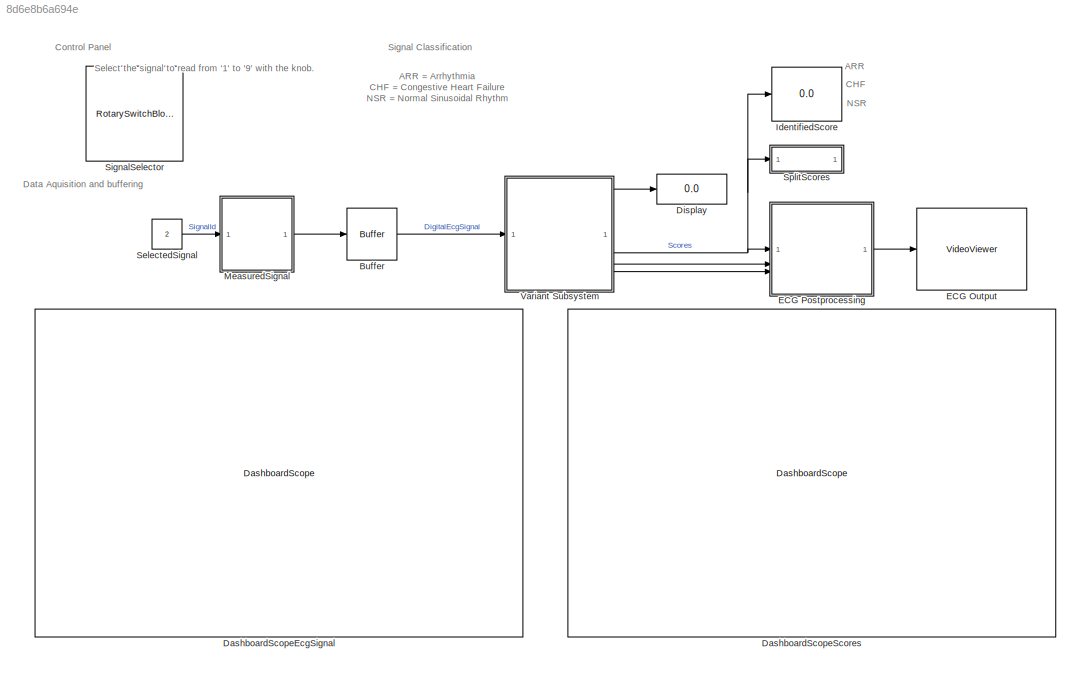
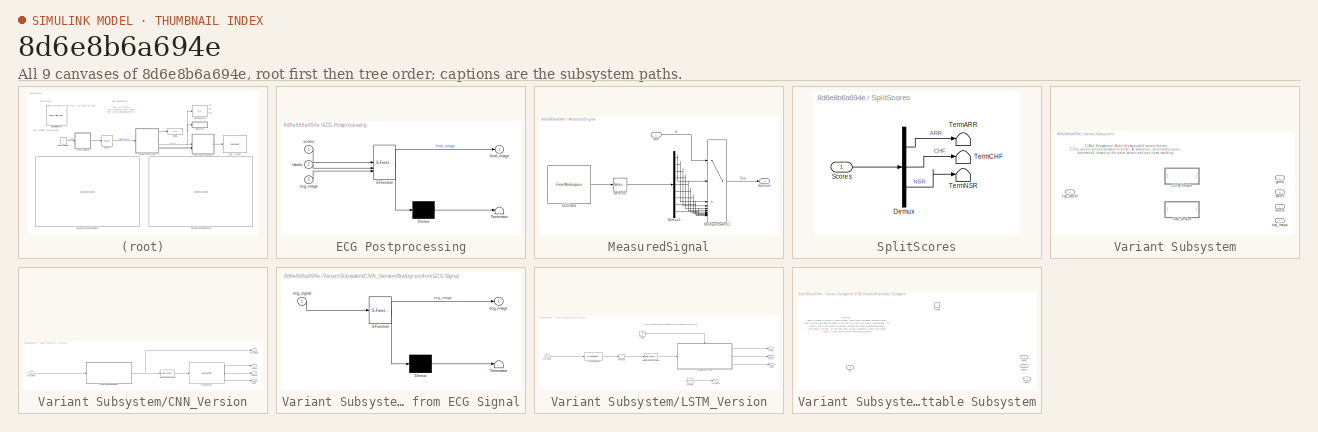
[diagram: thumbnail index - all 9 canvases of the model, root first then tree order]
MODEL slx_8d6e8b6a694e
KIND model
CONFIG AbsTol = auto
CONFIG EnableMultiTasking = off
CONFIG FixedStep = 1/128
CONFIG MaxStep = auto
CONFIG MinStep = auto
CONFIG RelTol = 1e-3
CONFIG SampleTimeConstraint = Unconstrained
CONFIG SolverName = FixedStepDiscrete
CONFIG StartTime = 0
CONFIG StopTime = 511
BLOCK [Buffer] Buffer
  N = 1024
  OutputFrames = off
  V = 512
BLOCK [DashboardScope] DashboardScopeEcgSignal
  ScaleAtStop = off
  TimeSpan = 30
  UpdateMode = Scroll
BLOCK [DashboardScope] DashboardScopeScores
  ScaleAtStop = off
  TimeSpan = 30
  Ymax = 1.1
  Ymin = -0.1
BLOCK [Display] Display
  Decimation = 1
BLOCK [VideoViewer] ECG Output
  FigPos = [-1836.33333333333 840 592.666666666667 452]
  ScopeSpecificationString = vipscopes.VideoViewerScopeCfg('CurrentConfiguration', extmgr.ConfigurationSet(extmgr.Configuration('Core','General UI',true),extmgr.Configuration('Core','Source UI',true),extmgr.Configuration('Sources','WiredSimulink',true,'LockSynchronous',true),extmgr.Configuration('Sources','File',false),extmgr.Configuration('Sources','Workspace',false),extmgr.Configuration('Sources','Streaming',false),extmgr.C...<+1509ch>
  colormapValue = gray(256)
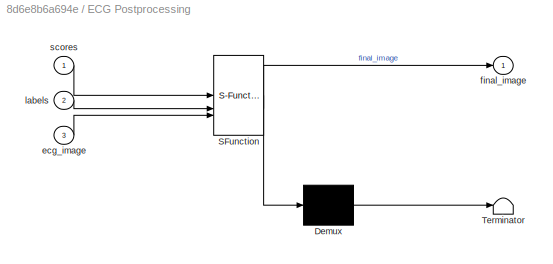
BLOCK [SubSystem] ECG Postprocessing
  ErrorFcn = Stateflow.Translate.translate
  PermitHierarchicalResolution = ExplicitOnly
  SFBlockType = MATLAB Function
  TreatAsAtomicUnit = on
BLOCK [Demux] ECG Postprocessing/ Demux 
  Outputs = 1
BLOCK [S-Function] ECG Postprocessing/ SFunction 
  EnableBusSupport = on
  FunctionName = sf_sfun
  PortCounts = [3 2]
  SFcnIsStateOwnerBlock = off
  SFunctionDeploymentMode = off
  Tag = Stateflow S-Function 3
BLOCK [Terminator] ECG Postprocessing/ Terminator 
BLOCK [Inport] ECG Postprocessing/ecg_image
  Port = 3
BLOCK [Outport] ECG Postprocessing/final_image
BLOCK [Inport] ECG Postprocessing/labels
  Port = 2
BLOCK [Inport] ECG Postprocessing/scores
BLOCK [Display] IdentifiedScore
  Decimation = 1
BLOCK [SubSystem] MeasuredSignal
  VariantControl = testMixed
BLOCK [Demux] MeasuredSignal/Demux1
  Outputs = 9
BLOCK [FromWorkspace] MeasuredSignal/ECG Data
  SampleTime = 1/128
  VariableName = ecg_stream
BLOCK [Inport] MeasuredSignal/IdIn
BLOCK [MultiPortSwitch] MeasuredSignal/MultiportSwitch1
  DataPortForDefault = Additional data port
  DiagnosticForDefault = None
  InputSameDT = off
  Inputs = 9
  SaturateOnIntegerOverflow = off
BLOCK [Selector] MeasuredSignal/Selector
  IndexOptions = Index vector (dialog)
  Indices = [3 12 27 31 36 38 43 48 49]
  InputPortWidth = 49
  OutputSizes = 1
BLOCK [Outport] MeasuredSignal/Sensors
BLOCK [Constant] SelectedSignal
  SampleTime = -1
  Value = 2
BLOCK [RotarySwitchBlock] SignalSelector
  LabelPosition = Hide
BLOCK [SubSystem] SplitScores
BLOCK [Demux] SplitScores/Demux
  Outputs = 3
BLOCK [Inport] SplitScores/Scores
BLOCK [Terminator] SplitScores/TermARR
  NameLocation = right
BLOCK [Terminator] SplitScores/TermCHF
  NameLocation = right
BLOCK [Terminator] SplitScores/TermNSR
  NameLocation = right
BLOCK [SubSystem] Variant Subsystem
  LabelModeActiveChoice = true
  Variant = on
  VariantControlMode = label
BLOCK [SubSystem] Variant Subsystem/CNN_Version
  VariantControl = false
BLOCK [DataTypeConversion] Variant Subsystem/CNN_Version/Data Type Conversion
  OutDataTypeStr = single
  RndMeth = Floor
  SaturateOnIntegerOverflow = off
BLOCK [Reference] Variant Subsystem/CNN_Version/Pretrained CNN   REF=deeplib/Image Classifier
  SourceBlock = deeplib/Image Classifier
  SourceType = Image Classifier
BLOCK [SubSystem] Variant Subsystem/CNN_Version/Scalogram from ECG Signal
  ErrorFcn = Stateflow.Translate.translate
  PermitHierarchicalResolution = ExplicitOnly
  SFBlockType = MATLAB Function
  TreatAsAtomicUnit = on
BLOCK [Demux] Variant Subsystem/CNN_Version/Scalogram from ECG Signal/ Demux 
  Outputs = 1
BLOCK [S-Function] Variant Subsystem/CNN_Version/Scalogram from ECG Signal/ SFunction 
  EnableBusSupport = on
  FunctionName = sf_sfun
  PortCounts = [1 2]
  SFcnIsStateOwnerBlock = off
  SFunctionDeploymentMode = off
  Tag = Stateflow S-Function 5
BLOCK [Terminator] Variant Subsystem/CNN_Version/Scalogram from ECG Signal/ Terminator 
BLOCK [Outport] Variant Subsystem/CNN_Version/Scalogram from ECG Signal/ecg_image
BLOCK [Inport] Variant Subsystem/CNN_Version/Scalogram from ECG Signal/ecg_signal
BLOCK [Outport] Variant Subsystem/CNN_Version/ecg_image
  Port = 4
BLOCK [Inport] Variant Subsystem/CNN_Version/ecg_signal
BLOCK [Outport] Variant Subsystem/CNN_Version/labels
  Port = 3
BLOCK [Outport] Variant Subsystem/CNN_Version/scores
  Port = 2
BLOCK [Outport] Variant Subsystem/CNN_Version/ypred
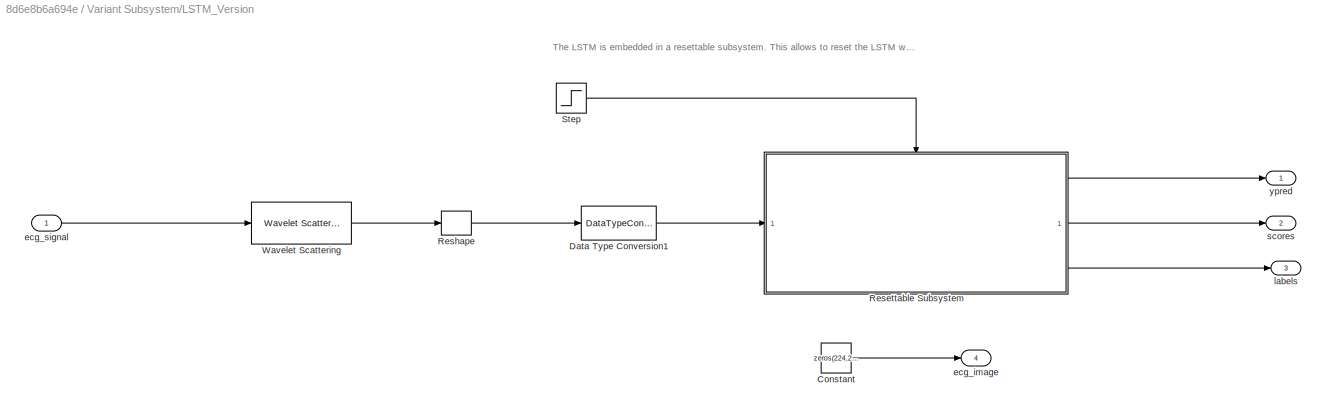
BLOCK [SubSystem] Variant Subsystem/LSTM_Version
  VariantControl = true
BLOCK [Constant] Variant Subsystem/LSTM_Version/Constant
  SampleTime = 4
  Value = zeros(224,224,3)
BLOCK [DataTypeConversion] Variant Subsystem/LSTM_Version/Data Type Conversion1
  OutDataTypeStr = single
  RndMeth = Floor
  SaturateOnIntegerOverflow = off
BLOCK [SubSystem] Variant Subsystem/LSTM_Version/Resettable Subsystem
  TreatAsAtomicUnit = on
BLOCK [Inport] Variant Subsystem/LSTM_Version/Resettable Subsystem/In1
BLOCK [ResetPort] Variant Subsystem/LSTM_Version/Resettable Subsystem/Reset
  DisableCoverage = on
BLOCK [Outport] Variant Subsystem/LSTM_Version/Resettable Subsystem/labels
  Port = 3
BLOCK [Outport] Variant Subsystem/LSTM_Version/Resettable Subsystem/scores
  Port = 2
BLOCK [Outport] Variant Subsystem/LSTM_Version/Resettable Subsystem/ypred
BLOCK [Reshape] Variant Subsystem/LSTM_Version/Reshape
BLOCK [Step] Variant Subsystem/LSTM_Version/Step
  SampleTime = 4
  Time = 0.1
BLOCK [Reference] Variant Subsystem/LSTM_Version/Wavelet Scattering  REF=dspfeatures/Wavelet Scattering
  SourceBlock = dspfeatures/Wavelet Scattering
  SourceType = waveletscattering
BLOCK [Outport] Variant Subsystem/LSTM_Version/ecg_image
  Port = 4
BLOCK [Inport] Variant Subsystem/LSTM_Version/ecg_signal
BLOCK [Outport] Variant Subsystem/LSTM_Version/labels
  Port = 3
BLOCK [Outport] Variant Subsystem/LSTM_Version/scores
  Port = 2
BLOCK [Outport] Variant Subsystem/LSTM_Version/ypred
BLOCK [Outport] Variant Subsystem/ecg_image
  Port = 4
BLOCK [Inport] Variant Subsystem/ecg_signal
BLOCK [Outport] Variant Subsystem/labels
  Port = 3
BLOCK [Outport] Variant Subsystem/scores
  Port = 2
BLOCK [Outport] Variant Subsystem/ypred
ANNOTATION (root): ARR = Arrhythmia CHF = Congestive Heart Failure NSR = Normal Sinusoidal Rhythm
ANNOTATION (root): Select the signal to read from '1' to '9' with the knob.
ANNOTATION (root): ARR
ANNOTATION (root): CHF
ANNOTATION (root): Control Panel
ANNOTATION (root): Data Aquisition and buffering
ANNOTATION (root): NSR
ANNOTATION (root): Signal Classification
ANNOTATION Variant Subsystem: 1) Add Subsystem or Model blocks as valid variant choices. 2) You cannot connect blocks at this level. At simulation, connectivity is automatically determined, based on the active variant and port name matching.
ANNOTATION Variant Subsystem/LSTM_Version: The LSTM is embedded in a resettable subsystem. This allows to reset the LSTM when the signal is recorded from different individuals.
ANNOTATION Variant Subsystem/LSTM_Version/Resettable Subsystem: Exercise: - Insert a "Stateful Classify" block from the deep learning library - Open the block and add the saved LSTM.mat file from the "models" folder. - Specify the Class names workspace variable as "classNames" - Use "CT" as the input data format instead of "TCB" - Select Classification and Predictions as output - Link the input and output ports to the "Stateful Classify" block
LINE Buffer:1 -> Variant Subsystem:1
LINE ECG Postprocessing:1 -> ECG Output:1
LINE MeasuredSignal/Demux1:1 -> MeasuredSignal/MultiportSwitch1:2
LINE MeasuredSignal/Demux1:2 -> MeasuredSignal/MultiportSwitch1:3
LINE MeasuredSignal/Demux1:3 -> MeasuredSignal/MultiportSwitch1:4
LINE MeasuredSignal/Demux1:4 -> MeasuredSignal/MultiportSwitch1:5
LINE MeasuredSignal/Demux1:5 -> MeasuredSignal/MultiportSwitch1:6
LINE MeasuredSignal/Demux1:6 -> MeasuredSignal/MultiportSwitch1:7
LINE MeasuredSignal/Demux1:7 -> MeasuredSignal/MultiportSwitch1:8
LINE MeasuredSignal/Demux1:8 -> MeasuredSignal/MultiportSwitch1:9
NET MeasuredSignal/Demux1:9 -> MeasuredSignal/MultiportSwitch1:10, MeasuredSignal/MultiportSwitch1:11
LINE MeasuredSignal/ECG Data:1 -> MeasuredSignal/Selector:1
LINE MeasuredSignal/IdIn:1 -> MeasuredSignal/MultiportSwitch1:1
LINE MeasuredSignal/MultiportSwitch1:1 -> MeasuredSignal/Sensors:1
LINE MeasuredSignal/Selector:1 -> MeasuredSignal/Demux1:1
LINE MeasuredSignal:1 -> Buffer:1
LINE SelectedSignal:1 -> MeasuredSignal:1
LINE SplitScores/Demux:1 -> SplitScores/TermARR:1
LINE SplitScores/Demux:2 -> SplitScores/TermCHF:1
LINE SplitScores/Demux:3 -> SplitScores/TermNSR:1
LINE SplitScores/Scores:1 -> SplitScores/Demux:1
LINE Variant Subsystem/CNN_Version/Data Type Conversion:1 -> Variant Subsystem/CNN_Version/Pretrained CNN :1
LINE Variant Subsystem/CNN_Version/Pretrained CNN :1 -> Variant Subsystem/CNN_Version/ypred:1
LINE Variant Subsystem/CNN_Version/Pretrained CNN :2 -> Variant Subsystem/CNN_Version/scores:1
LINE Variant Subsystem/CNN_Version/Pretrained CNN :3 -> Variant Subsystem/CNN_Version/labels:1
NET Variant Subsystem/CNN_Version/Scalogram from ECG Signal:1 -> Variant Subsystem/CNN_Version/Data Type Conversion:1, Variant Subsystem/CNN_Version/ecg_image:1
LINE Variant Subsystem/CNN_Version/ecg_signal:1 -> Variant Subsystem/CNN_Version/Scalogram from ECG Signal:1
LINE Variant Subsystem/LSTM_Version/Constant:1 -> Variant Subsystem/LSTM_Version/ecg_image:1
LINE Variant Subsystem/LSTM_Version/Data Type Conversion1:1 -> Variant Subsystem/LSTM_Version/Resettable Subsystem:1
LINE Variant Subsystem/LSTM_Version/Resettable Subsystem:1 -> Variant Subsystem/LSTM_Version/ypred:1
LINE Variant Subsystem/LSTM_Version/Resettable Subsystem:2 -> Variant Subsystem/LSTM_Version/scores:1
LINE Variant Subsystem/LSTM_Version/Resettable Subsystem:3 -> Variant Subsystem/LSTM_Version/labels:1
LINE Variant Subsystem/LSTM_Version/Reshape:1 -> Variant Subsystem/LSTM_Version/Data Type Conversion1:1
LINE Variant Subsystem/LSTM_Version/Step:1 -> Variant Subsystem/LSTM_Version/Resettable Subsystem:Reset
LINE Variant Subsystem/LSTM_Version/Wavelet Scattering:1 -> Variant Subsystem/LSTM_Version/Reshape:1
LINE Variant Subsystem/LSTM_Version/ecg_signal:1 -> Variant Subsystem/LSTM_Version/Wavelet Scattering:1
LINE Variant Subsystem:1 -> Display:1
NET Variant Subsystem:2 -> ECG Postprocessing:1, IdentifiedScore:1, SplitScores:1
LINE Variant Subsystem:3 -> ECG Postprocessing:2
LINE Variant Subsystem:4 -> ECG Postprocessing:3
note: NET lines group one-source signal fan-out (src -> all destinations, sorted); 1:1 wires keep LINE
CHART ECG Postprocessing states=1 transitions=1
  STATE_LABEL 'eML_blk_kernel()'
  STATE_LABEL 'SCRIPT:\nfunction final_image = ECGPostprocessing(scores, labels, ecg_image)\n    \n    final_image = label_prob_image(ecg_image, scores, labels);\n\nend\n'
CHART Variant Subsystem/CNN_Version/Scalogram from ECG Signal states=1 transitions=1
  STATE_LABEL 'eML_blk_kernel()'
  STATE_LABEL 'SCRIPT:\nfunction ecg_image  = ScalogramFromECG(ecg_signal)\n    \n    ecg_image = ecg_to_scalogram(ecg_signal);  \n\nend\n\n'
CHART  states=0 transitions=0
CHART  states=0 transitions=0
